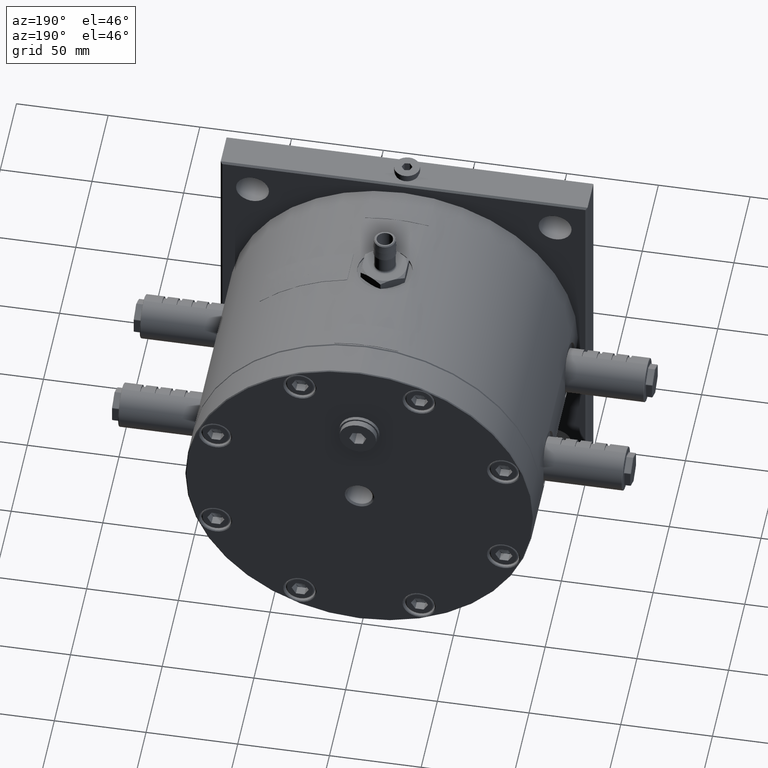
[diagram: clean part render]
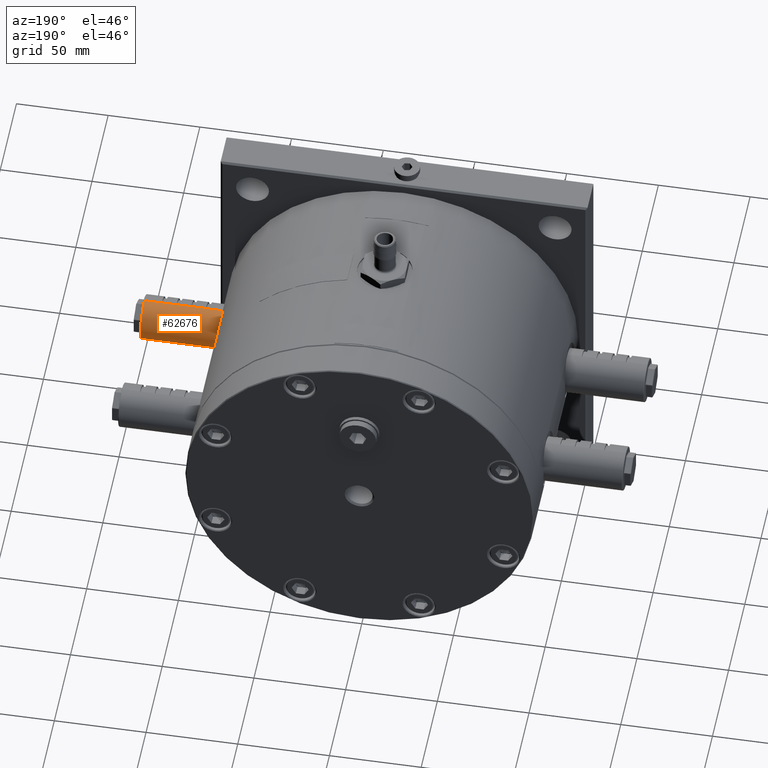
[diagram: same view with one face highlighted and labeled with its STEP entity id]
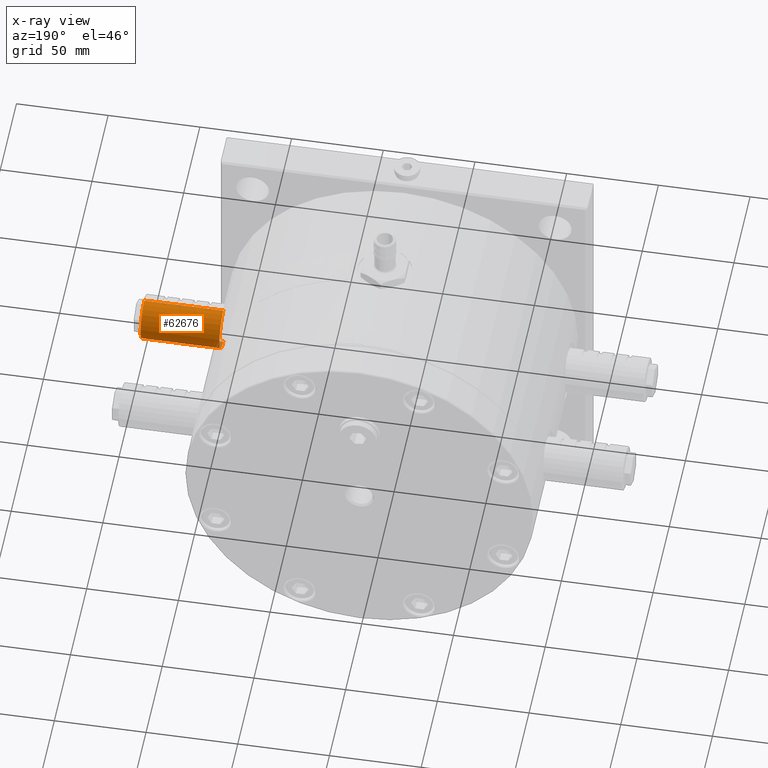
[diagram: x-ray of the same camera — body ghosted, the highlighted face saturated]
A machine part, auxiliary view. The second image highlights one B-rep face of the part: STEP entity #62676.
The next image is the same camera in x-ray: the body ghosted, the highlighted face saturated — about 1% of this face is hidden behind the body in this view.
In plain terms, the highlighted cylindrical surface (edge-blend (fillet) strip) has radius 12 mm, axis along (-1, -0, 0).
Its self-contained STEP definition (entity closure, byte-faithful):
#1104 = LINE ( 'NONE', #46793, #8035 ) ;
#1160 = CARTESIAN_POINT ( 'NONE',  ( 137.5000000000000000, 45.00000000000000000, 12.00000000000000000 ) ) ;
#1336 = DIRECTION ( 'NONE',  ( -1.000000000000000000, -9.784048416010939800E-016, 0.0000000000000000000 ) ) ;
#1339 = DIRECTION ( 'NONE',  ( -1.000000000000000000, -9.784048416010939800E-016, 0.0000000000000000000 ) ) ;
#1475 = VECTOR ( 'NONE', #10848, 1000.000000000000000 ) ;
#2121 = VERTEX_POINT ( 'NONE', #52597 ) ;
#2182 = CARTESIAN_POINT ( 'NONE',  ( 111.5000000000000000, 45.00000000000000000, 12.00000000000000000 ) ) ;
#2400 = VERTEX_POINT ( 'NONE', #45455 ) ;
#2684 = LINE ( 'NONE', #36501, #18817 ) ;
#3974 = VECTOR ( 'NONE', #36211, 1000.000000000000000 ) ;
#4286 = VECTOR ( 'NONE', #20371, 1000.000000000000000 ) ;
#5316 = VERTEX_POINT ( 'NONE', #28929 ) ;
#5970 = CARTESIAN_POINT ( 'NONE',  ( 137.5000000000000000, 45.00000000000000000, 11.99999999999997300 ) ) ;
#6653 = AXIS2_PLACEMENT_3D ( 'NONE', #36264, #21707, #16325 ) ;
#7457 = CARTESIAN_POINT ( 'NONE',  ( 125.5000000000000000, 45.00000000000000000, -12.00000000000000000 ) ) ;
#8035 = VECTOR ( 'NONE', #57471, 1000.000000000000000 ) ;
#8562 = FACE_OUTER_BOUND ( 'NONE', #52197, .T. ) ;
#10089 = CIRCLE ( 'NONE', #45964, 12.00000000000000000 ) ;
#10287 = VERTEX_POINT ( 'NONE', #42531 ) ;
#10631 = EDGE_CURVE ( 'NONE', #39531, #45621, #11687, .T. ) ;
#10848 = DIRECTION ( 'NONE',  ( -1.000000000000000000, -9.784048416010939800E-016, 0.0000000000000000000 ) ) ;
#11421 = EDGE_CURVE ( 'NONE', #35851, #2121, #36100, .T. ) ;
#11568 = VECTOR ( 'NONE', #48259, 1000.000000000000000 ) ;
#11687 = LINE ( 'NONE', #42175, #52342 ) ;
#11709 = DIRECTION ( 'NONE',  ( 0.0000000000000000000, 0.0000000000000000000, -1.000000000000000000 ) ) ;
#12014 = CARTESIAN_POINT ( 'NONE',  ( 137.5000000000000000, 45.00000000000000000, -12.00000000000002800 ) ) ;
#12336 = ORIENTED_EDGE ( 'NONE', *, *, #37630, .F. ) ;
#12813 = VERTEX_POINT ( 'NONE', #54013 ) ;
#12968 = VECTOR ( 'NONE', #54754, 1000.000000000000000 ) ;
#13705 = EDGE_CURVE ( 'NONE', #28198, #45621, #23191, .T. ) ;
#13957 = ORIENTED_EDGE ( 'NONE', *, *, #36927, .T. ) ;
#14187 = CARTESIAN_POINT ( 'NONE',  ( 119.5000000000000000, 45.00000000000000000, 12.00000000000000000 ) ) ;
#15517 = CARTESIAN_POINT ( 'NONE',  ( 137.5000000000000000, 45.00000000000000000, 12.00000000000000000 ) ) ;
#16303 = CARTESIAN_POINT ( 'NONE',  ( 137.5000000000000000, 45.00000000000000000, 11.99999999999997300 ) ) ;
#16325 = DIRECTION ( 'NONE',  ( 0.0000000000000000000, 0.0000000000000000000, 1.000000000000000000 ) ) ;
#16841 = LINE ( 'NONE', #20495, #12968 ) ;
#17138 = ORIENTED_EDGE ( 'NONE', *, *, #27041, .T. ) ;
#17333 = DIRECTION ( 'NONE',  ( 1.000000000000000000, 9.784048416010939800E-016, -0.0000000000000000000 ) ) ;
#17650 = CARTESIAN_POINT ( 'NONE',  ( 94.00000000000000000, 44.99999999999997900, -12.00000000000002800 ) ) ;
#17763 = CARTESIAN_POINT ( 'NONE',  ( 137.5000000000000000, 45.00000000000000000, -12.00000000000000000 ) ) ;
#17932 = VERTEX_POINT ( 'NONE', #38325 ) ;
#18011 = EDGE_CURVE ( 'NONE', #25944, #17932, #38884, .T. ) ;
#18687 = AXIS2_PLACEMENT_3D ( 'NONE', #25442, #50074, #11709 ) ;
#18817 = VECTOR ( 'NONE', #1336, 1000.000000000000000 ) ;
#18899 = ORIENTED_EDGE ( 'NONE', *, *, #23216, .T. ) ;
#20026 = VERTEX_POINT ( 'NONE', #2182 ) ;
#20078 = DIRECTION ( 'NONE',  ( -1.000000000000000000, -9.784048416010939800E-016, 0.0000000000000000000 ) ) ;
#20371 = DIRECTION ( 'NONE',  ( -1.000000000000000000, -9.784048416010939800E-016, 0.0000000000000000000 ) ) ;
#20495 = CARTESIAN_POINT ( 'NONE',  ( 137.5000000000000000, 45.00000000000000000, -12.00000000000000000 ) ) ;
#21707 = DIRECTION ( 'NONE',  ( 1.000000000000000000, 9.784048416010939800E-016, 0.0000000000000000000 ) ) ;
#23191 = LINE ( 'NONE', #5970, #3974 ) ;
#23216 = EDGE_CURVE ( 'NONE', #2400, #38677, #10089, .T. ) ;
#23433 = LINE ( 'NONE', #49730, #4286 ) ;
#24752 = ORIENTED_EDGE ( 'NONE', *, *, #33971, .F. ) ;
#24846 = CARTESIAN_POINT ( 'NONE',  ( 109.5000000000000000, 45.00000000000000000, -12.00000000000000000 ) ) ;
#25141 = LINE ( 'NONE', #52389, #39712 ) ;
#25233 = EDGE_CURVE ( 'NONE', #34404, #56566, #48374, .T. ) ;
#25442 = CARTESIAN_POINT ( 'NONE',  ( 137.5000000000000000, 45.00000000000000000, -2.775557561562889800E-014 ) ) ;
#25837 = VECTOR ( 'NONE', #40606, 1000.000000000000000 ) ;
#25944 = VERTEX_POINT ( 'NONE', #24846 ) ;
#26638 = LINE ( 'NONE', #12014, #45815 ) ;
#27041 = EDGE_CURVE ( 'NONE', #28375, #5316, #26638, .T. ) ;
#28198 = VERTEX_POINT ( 'NONE', #34096 ) ;
#28375 = VERTEX_POINT ( 'NONE', #7457 ) ;
#28396 = ORIENTED_EDGE ( 'NONE', *, *, #13705, .F. ) ;
#28816 = EDGE_CURVE ( 'NONE', #38677, #10287, #1104, .T. ) ;
#28929 = CARTESIAN_POINT ( 'NONE',  ( 119.5000000000000000, 45.00000000000000000, -12.00000000000000000 ) ) ;
#29100 = EDGE_CURVE ( 'NONE', #48184, #35851, #62548, .T. ) ;
#30526 = LINE ( 'NONE', #48313, #35152 ) ;
#31481 = LINE ( 'NONE', #39569, #33719 ) ;
#31949 = DIRECTION ( 'NONE',  ( -1.000000000000000000, -9.784048416010939800E-016, 0.0000000000000000000 ) ) ;
#32117 = DIRECTION ( 'NONE',  ( -1.000000000000000000, -9.784048416010939800E-016, 0.0000000000000000000 ) ) ;
#32472 = DIRECTION ( 'NONE',  ( -1.000000000000000000, -9.784048416010939800E-016, 0.0000000000000000000 ) ) ;
#32478 = LINE ( 'NONE', #15517, #36272 ) ;
#33223 = ORIENTED_EDGE ( 'NONE', *, *, #37862, .F. ) ;
#33348 = ORIENTED_EDGE ( 'NONE', *, *, #61029, .F. ) ;
#33719 = VECTOR ( 'NONE', #20078, 1000.000000000000000 ) ;
#33752 = DIRECTION ( 'NONE',  ( 1.000000000000000000, 9.784048416010939800E-016, -0.0000000000000000000 ) ) ;
#33971 = EDGE_CURVE ( 'NONE', #53046, #48184, #45933, .T. ) ;
#34096 = CARTESIAN_POINT ( 'NONE',  ( 109.5000000000000000, 45.00000000000000000, 12.00000000000000000 ) ) ;
#34404 = VERTEX_POINT ( 'NONE', #17650 ) ;
#35152 = VECTOR ( 'NONE', #33752, 1000.000000000000000 ) ;
#35426 = LINE ( 'NONE', #17763, #45321 ) ;
#35577 = ORIENTED_EDGE ( 'NONE', *, *, #47864, .F. ) ;
#35851 = VERTEX_POINT ( 'NONE', #14187 ) ;
#36038 = CARTESIAN_POINT ( 'NONE',  ( 137.5000000000000000, 45.00000000000000000, 11.99999999999997300 ) ) ;
#36100 = LINE ( 'NONE', #43328, #11568 ) ;
#36119 = CARTESIAN_POINT ( 'NONE',  ( 137.5000000000000000, 45.00000000000000000, -12.00000000000002800 ) ) ;
#36211 = DIRECTION ( 'NONE',  ( -1.000000000000000000, -9.784048416010939800E-016, 0.0000000000000000000 ) ) ;
#36264 = CARTESIAN_POINT ( 'NONE',  ( 94.00000000000000000, 45.00000000000000000, -2.775557561562889800E-014 ) ) ;
#36272 = VECTOR ( 'NONE', #1339, 1000.000000000000000 ) ;
#36501 = CARTESIAN_POINT ( 'NONE',  ( 137.5000000000000000, 45.00000000000000000, 11.99999999999997300 ) ) ;
#36927 = EDGE_CURVE ( 'NONE', #17932, #59696, #61007, .T. ) ;
#36943 = EDGE_CURVE ( 'NONE', #25944, #57951, #35426, .T. ) ;
#37032 = CARTESIAN_POINT ( 'NONE',  ( 111.5000000000000000, 45.00000000000000000, -12.00000000000000000 ) ) ;
#37065 = CARTESIAN_POINT ( 'NONE',  ( 101.5000000000000000, 45.00000000000000000, -12.00000000000000000 ) ) ;
#37230 = ORIENTED_EDGE ( 'NONE', *, *, #10631, .T. ) ;
#37371 = DIRECTION ( 'NONE',  ( 1.000000000000000000, 9.784048416010939800E-016, -0.0000000000000000000 ) ) ;
#37630 = EDGE_CURVE ( 'NONE', #12813, #5316, #30526, .T. ) ;
#37862 = EDGE_CURVE ( 'NONE', #2121, #20026, #41253, .T. ) ;
#38325 = CARTESIAN_POINT ( 'NONE',  ( 103.5000000000000000, 45.00000000000000000, -12.00000000000000000 ) ) ;
#38677 = VERTEX_POINT ( 'NONE', #45440 ) ;
#38884 = LINE ( 'NONE', #36119, #25837 ) ;
#39531 = VERTEX_POINT ( 'NONE', #53270 ) ;
#39569 = CARTESIAN_POINT ( 'NONE',  ( 137.5000000000000000, 45.00000000000000000, -12.00000000000002800 ) ) ;
#39712 = VECTOR ( 'NONE', #32472, 1000.000000000000000 ) ;
#39719 = EDGE_CURVE ( 'NONE', #2400, #53046, #2684, .T. ) ;
#40606 = DIRECTION ( 'NONE',  ( -1.000000000000000000, -9.784048416010939800E-016, 0.0000000000000000000 ) ) ;
#41253 = LINE ( 'NONE', #36038, #48151 ) ;
#42175 = CARTESIAN_POINT ( 'NONE',  ( 137.5000000000000000, 45.00000000000000000, 12.00000000000000000 ) ) ;
#42370 = CARTESIAN_POINT ( 'NONE',  ( 94.00000000000000000, 44.99999999999997900, 11.99999999999997300 ) ) ;
#42462 = ORIENTED_EDGE ( 'NONE', *, *, #46356, .T. ) ;
#42531 = CARTESIAN_POINT ( 'NONE',  ( 127.5000000000000000, 45.00000000000000000, -12.00000000000000000 ) ) ;
#42612 = ORIENTED_EDGE ( 'NONE', *, *, #28816, .T. ) ;
#43328 = CARTESIAN_POINT ( 'NONE',  ( 137.5000000000000000, 45.00000000000000000, 12.00000000000000000 ) ) ;
#43391 = ORIENTED_EDGE ( 'NONE', *, *, #54684, .F. ) ;
#45239 = ORIENTED_EDGE ( 'NONE', *, *, #29100, .F. ) ;
#45321 = VECTOR ( 'NONE', #17333, 1000.000000000000000 ) ;
#45440 = CARTESIAN_POINT ( 'NONE',  ( 137.0000000000000000, 44.99999999999997900, -12.00000000000002800 ) ) ;
#45455 = CARTESIAN_POINT ( 'NONE',  ( 137.0000000000000000, 44.99999999999997900, 11.99999999999997300 ) ) ;
#45621 = VERTEX_POINT ( 'NONE', #47264 ) ;
#45815 = VECTOR ( 'NONE', #31949, 1000.000000000000000 ) ;
#45933 = LINE ( 'NONE', #1160, #1475 ) ;
#45964 = AXIS2_PLACEMENT_3D ( 'NONE', #62358, #57202, #62569 ) ;
#46356 = EDGE_CURVE ( 'NONE', #12813, #57951, #23433, .T. ) ;
#46672 = ORIENTED_EDGE ( 'NONE', *, *, #25233, .T. ) ;
#46793 = CARTESIAN_POINT ( 'NONE',  ( 137.5000000000000000, 45.00000000000000000, -12.00000000000002800 ) ) ;
#47264 = CARTESIAN_POINT ( 'NONE',  ( 103.5000000000000000, 45.00000000000000000, 12.00000000000000000 ) ) ;
#47851 = CARTESIAN_POINT ( 'NONE',  ( 127.5000000000000000, 45.00000000000000000, 12.00000000000000000 ) ) ;
#47864 = EDGE_CURVE ( 'NONE', #20026, #28198, #32478, .T. ) ;
#48151 = VECTOR ( 'NONE', #60642, 1000.000000000000000 ) ;
#48184 = VERTEX_POINT ( 'NONE', #57667 ) ;
#48259 = DIRECTION ( 'NONE',  ( -1.000000000000000000, -9.784048416010939800E-016, 0.0000000000000000000 ) ) ;
#48313 = CARTESIAN_POINT ( 'NONE',  ( 137.5000000000000000, 45.00000000000000000, -12.00000000000000000 ) ) ;
#48374 = CIRCLE ( 'NONE', #6653, 12.00000000000000000 ) ;
#48744 = VECTOR ( 'NONE', #55502, 1000.000000000000000 ) ;
#49730 = CARTESIAN_POINT ( 'NONE',  ( 137.5000000000000000, 45.00000000000000000, -12.00000000000002800 ) ) ;
#50074 = DIRECTION ( 'NONE',  ( -1.000000000000000000, -9.784048416010939800E-016, 0.0000000000000000000 ) ) ;
#50607 = EDGE_CURVE ( 'NONE', #59696, #34404, #31481, .T. ) ;
#50658 = ORIENTED_EDGE ( 'NONE', *, *, #18011, .T. ) ;
#50819 = ORIENTED_EDGE ( 'NONE', *, *, #11421, .F. ) ;
#51311 = ORIENTED_EDGE ( 'NONE', *, *, #36943, .F. ) ;
#52197 = EDGE_LOOP ( 'NONE', ( #58767, #18899, #42612, #33348, #17138, #12336, #42462, #51311, #50658, #13957, #62952, #46672, #43391, #37230, #28396, #35577, #33223, #50819, #45239, #24752 ) ) ;
#52342 = VECTOR ( 'NONE', #37371, 1000.000000000000000 ) ;
#52389 = CARTESIAN_POINT ( 'NONE',  ( 137.5000000000000000, 45.00000000000000000, 11.99999999999997300 ) ) ;
#52597 = CARTESIAN_POINT ( 'NONE',  ( 117.5000000000000000, 45.00000000000000000, 12.00000000000000000 ) ) ;
#52623 = VECTOR ( 'NONE', #32117, 1000.000000000000000 ) ;
#53046 = VERTEX_POINT ( 'NONE', #47851 ) ;
#53270 = CARTESIAN_POINT ( 'NONE',  ( 101.5000000000000000, 45.00000000000000000, 12.00000000000000000 ) ) ;
#54013 = CARTESIAN_POINT ( 'NONE',  ( 117.5000000000000000, 45.00000000000000000, -12.00000000000000000 ) ) ;
#54684 = EDGE_CURVE ( 'NONE', #39531, #56566, #25141, .T. ) ;
#54754 = DIRECTION ( 'NONE',  ( 1.000000000000000000, 9.784048416010939800E-016, -0.0000000000000000000 ) ) ;
#55502 = DIRECTION ( 'NONE',  ( -1.000000000000000000, -9.784048416010939800E-016, 0.0000000000000000000 ) ) ;
#56526 = CARTESIAN_POINT ( 'NONE',  ( 137.5000000000000000, 45.00000000000000000, -12.00000000000000000 ) ) ;
#56566 = VERTEX_POINT ( 'NONE', #42370 ) ;
#57202 = DIRECTION ( 'NONE',  ( -1.000000000000000000, -9.784048416010939800E-016, -0.0000000000000000000 ) ) ;
#57471 = DIRECTION ( 'NONE',  ( -1.000000000000000000, -9.784048416010939800E-016, 0.0000000000000000000 ) ) ;
#57667 = CARTESIAN_POINT ( 'NONE',  ( 125.5000000000000000, 45.00000000000000000, 12.00000000000000000 ) ) ;
#57951 = VERTEX_POINT ( 'NONE', #37032 ) ;
#58767 = ORIENTED_EDGE ( 'NONE', *, *, #39719, .F. ) ;
#59696 = VERTEX_POINT ( 'NONE', #37065 ) ;
#60642 = DIRECTION ( 'NONE',  ( -1.000000000000000000, -9.784048416010939800E-016, 0.0000000000000000000 ) ) ;
#61007 = LINE ( 'NONE', #56526, #52623 ) ;
#61029 = EDGE_CURVE ( 'NONE', #28375, #10287, #16841, .T. ) ;
#62358 = CARTESIAN_POINT ( 'NONE',  ( 137.0000000000000000, 45.00000000000000000, -2.775557561562889800E-014 ) ) ;
#62548 = LINE ( 'NONE', #16303, #48744 ) ;
#62569 = DIRECTION ( 'NONE',  ( 0.0000000000000000000, 0.0000000000000000000, 1.000000000000000000 ) ) ;
#62676 = ADVANCED_FACE ( 'NONE', ( #8562 ), #63649, .T. ) ;
#62952 = ORIENTED_EDGE ( 'NONE', *, *, #50607, .T. ) ;
#63649 = CYLINDRICAL_SURFACE ( 'NONE', #18687, 12.00000000000000000 ) ;